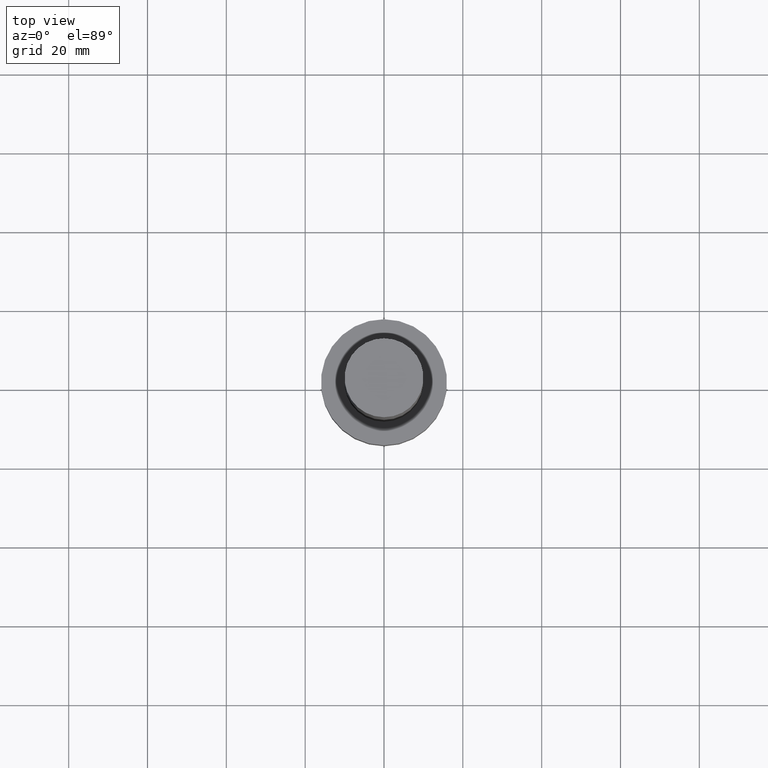
[diagram: clean part render]
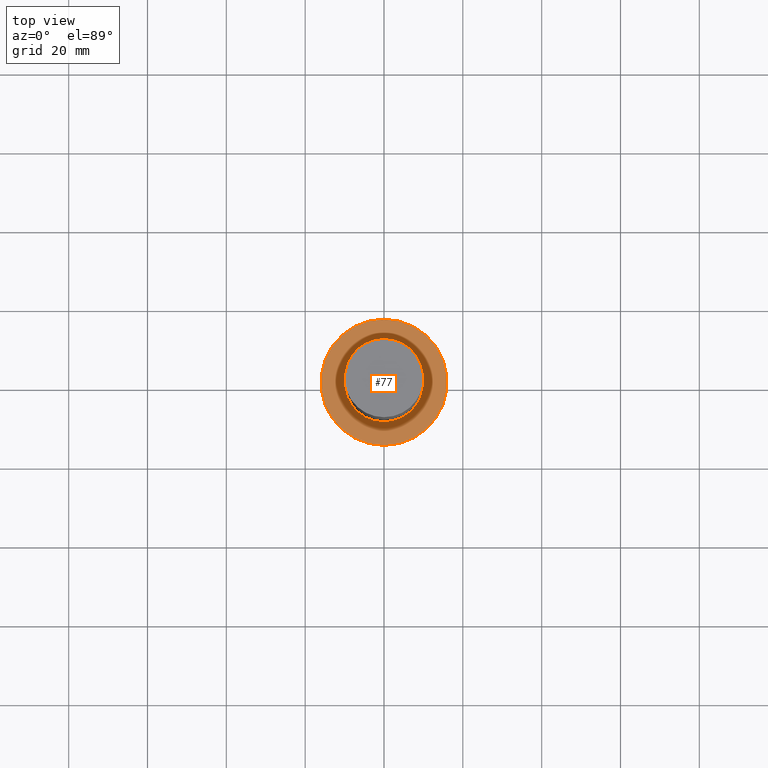
[diagram: same view with one face highlighted and labeled with its STEP entity id]
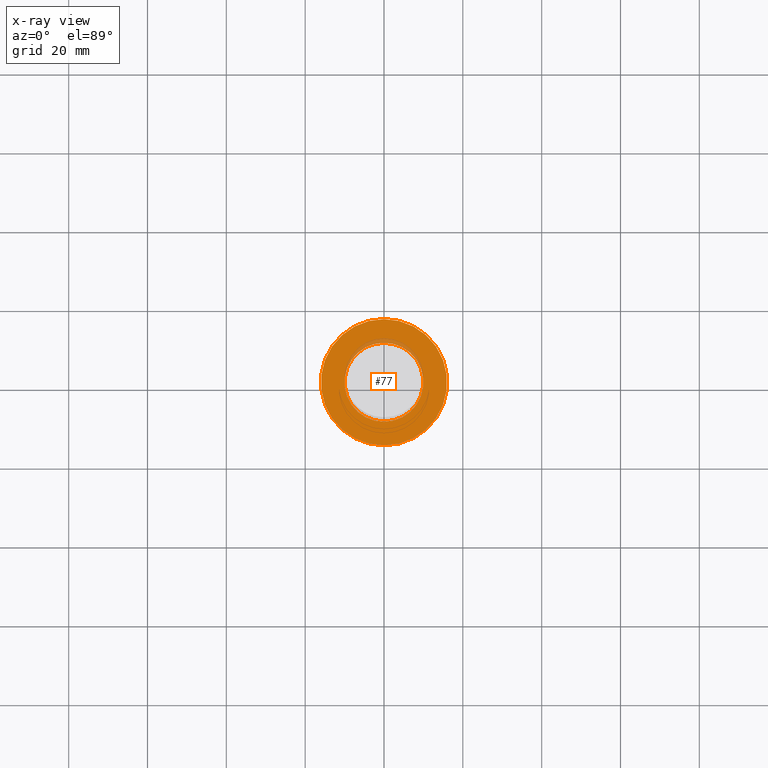
[diagram: x-ray of the same camera — body ghosted, the highlighted face saturated]
A machine part, top view. The second image highlights one B-rep face of the part: STEP entity #77.
The next image is the same camera in x-ray: the body ghosted, the highlighted face saturated — about 5% of this face is hidden behind the body in this view.
In plain terms, the highlighted planar face has unit normal (-0, -0, 1).
Its self-contained STEP definition (entity closure, byte-faithful):
#77=ADVANCED_FACE('',(#90,#91),#92,.T.);
#90=FACE_OUTER_BOUND('',#115,.T.);
#91=FACE_BOUND('',#116,.T.);
#92=PLANE('',#117);
#115=EDGE_LOOP('',(#144));
#116=EDGE_LOOP('',(#145));
#117=AXIS2_PLACEMENT_3D('',#146,#147,#148);
#144=ORIENTED_EDGE('',*,*,#180,.F.);
#145=ORIENTED_EDGE('',*,*,#179,.T.);
#146=CARTESIAN_POINT('',(-7.04171909509769E-015,13.0000000002153,115.000000000007));
#147=DIRECTION('',(-6.12323399573677E-017,-4.9860456186679E-014,1.0));
#148=DIRECTION('',(3.05789955638294E-030,-1.0,-4.9860456186679E-014));
#179=EDGE_CURVE('',#188,#188,#189,.T.);
#180=EDGE_CURVE('',#190,#190,#191,.T.);
#188=VERTEX_POINT('',#204);
#189=CIRCLE('',#205,10.0000000004299);
#190=VERTEX_POINT('',#206);
#191=CIRCLE('',#207,16.0000000000008);
#204=CARTESIAN_POINT('',(-7.04171909509768E-015,10.0000000004299,115.000000000007));
#205=AXIS2_PLACEMENT_3D('',#221,#222,#223);
#206=CARTESIAN_POINT('',(-7.0417190950977E-015,16.0000000000008,115.000000000007));
#207=AXIS2_PLACEMENT_3D('',#224,#225,#226);
#221=CARTESIAN_POINT('',(-7.04171909509768E-015,1.28341442273884E-014,115.000000000007));
#222=DIRECTION('',(6.12323399573677E-017,-1.11601254151197E-016,-1.0));
#223=DIRECTION('',(2.00645320308564E-033,1.0,-1.11601254151197E-016));
#224=CARTESIAN_POINT('',(-7.0417190950977E-015,1.28341442273884E-014,115.000000000007));
#225=DIRECTION('',(6.12323399573676E-017,-1.11601254151197E-016,-1.0));
#226=DIRECTION('',(2.00645320308564E-033,1.0,-1.11601254151197E-016));